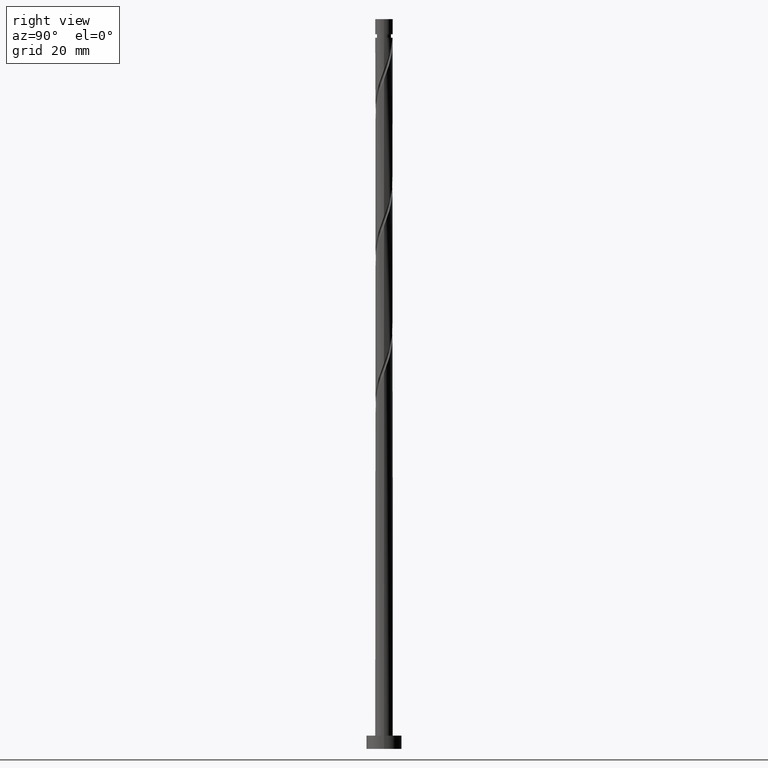
[diagram: clean part render]
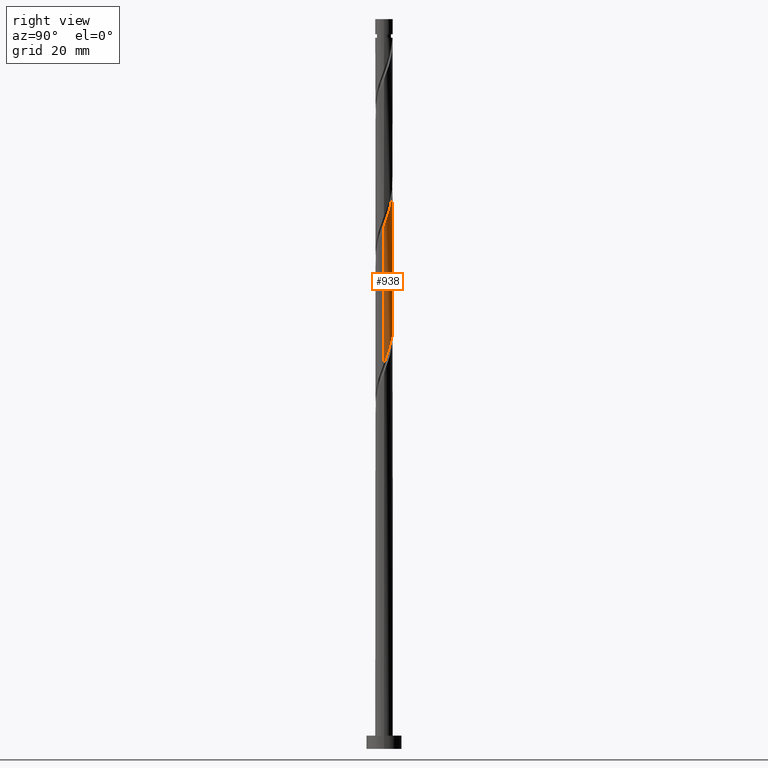
[diagram: same view with one face highlighted and labeled with its STEP entity id]
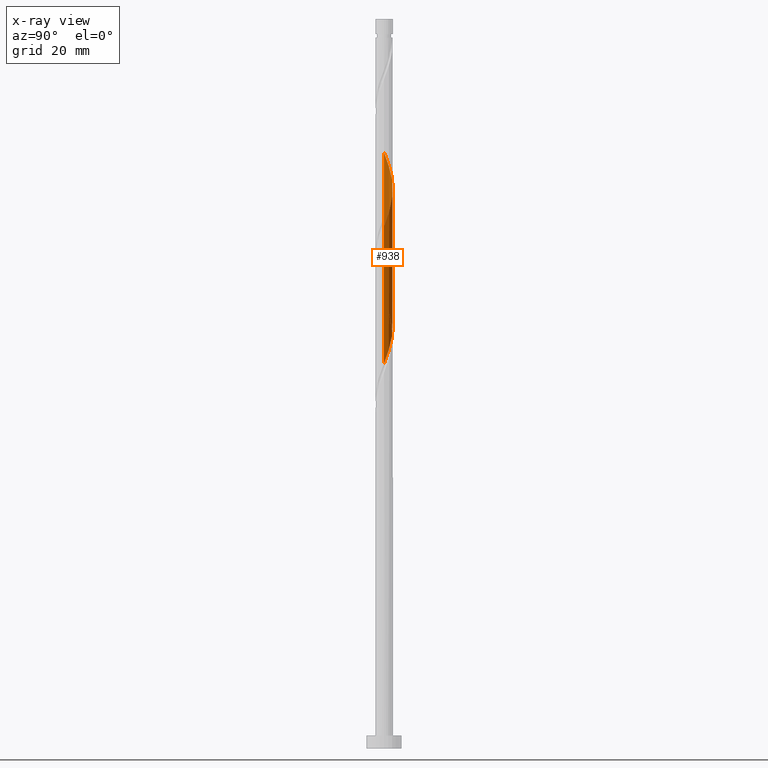
[diagram: x-ray of the same camera — body ghosted, the highlighted face saturated]
A machine part, right view. The second image highlights one B-rep face of the part: STEP entity #938.
The next image is the same camera in x-ray: the body ghosted, the highlighted face saturated — about 0% of this face is hidden behind the body in this view.
In plain terms, the highlighted cylindrical surface (edge-blend (fillet) strip) has radius 2 mm, axis along (-0, -0, -1).
Its self-contained STEP definition (entity closure, byte-faithful):
#5 = DIRECTION ( 'NONE',  ( -0.000000000000000000, -0.000000000000000000, -1.000000000000000000 ) ) ;
#64 = ORIENTED_EDGE ( 'NONE', *, *, #411, .F. ) ;
#76 = VECTOR ( 'NONE', #598, 1000.000000000000000 ) ;
#99 = CARTESIAN_POINT ( 'NONE',  ( -0.6560338701139447615, 1.907602967534735239, 128.9230861811824980 ) ) ;
#105 = CARTESIAN_POINT ( 'NONE',  ( 1.999999999999999556, -2.624389169855325064E-15, 87.62554172528147944 ) ) ;
#116 = CARTESIAN_POINT ( 'NONE',  ( -0.1399560795713503114, 2.012397032465270463, 127.5341972922936549 ) ) ;
#135 = AXIS2_PLACEMENT_3D ( 'NONE', #1377, #1632, #1513 ) ;
#150 = VERTEX_POINT ( 'NONE', #1182 ) ;
#238 = CARTESIAN_POINT ( 'NONE',  ( 1.907602967534735683, 0.6560338701139443174, 120.5897528478492120 ) ) ;
#246 = CARTESIAN_POINT ( 'NONE',  ( 0.1228517034671607472, 1.996223298870952290, 126.8397528478492120 ) ) ;
#286 = CARTESIAN_POINT ( 'NONE',  ( -1.498412303996174977, 1.324673758792281442, 100.4508639589602836 ) ) ;
#312 = CARTESIAN_POINT ( 'NONE',  ( -0.1228517034671585684, 1.996223298870949403, 96.28419729229362645 ) ) ;
#321 = CARTESIAN_POINT ( 'NONE',  ( 1.324673758792282108, 1.498412303996174533, 92.11753062562696925 ) ) ;
#399 = CARTESIAN_POINT ( 'NONE',  ( -0.3979949748426481193, 1.960000000000003073, 128.2286417367380977 ) ) ;
#411 = EDGE_CURVE ( 'NONE', #951, #476, #1138, .T. ) ;
#433 = ORIENTED_EDGE ( 'NONE', *, *, #1639, .T. ) ;
#460 = CARTESIAN_POINT ( 'NONE',  ( 0.3979949748426486189, 1.959999999999999520, 94.89530840340474072 ) ) ;
#474 = CARTESIAN_POINT ( 'NONE',  ( -2.000000000000000000, 0.000000000000000000, 165.8000000000000114 ) ) ;
#476 = VERTEX_POINT ( 'NONE', #1129 ) ;
#505 = CARTESIAN_POINT ( 'NONE',  ( -0.8917189533347235075, 1.790205940182200361, 129.6175306256269835 ) ) ;
#516 = CARTESIAN_POINT ( 'NONE',  ( -2.000000000000003109, 0.06148390331535001641, 135.3352447268331957 ) ) ;
#525 = CARTESIAN_POINT ( 'NONE',  ( -1.980049565276635226, 0.3856594865056707233, 134.4786417367380693 ) ) ;
#566 = CARTESIAN_POINT ( 'NONE',  ( -1.672808912829663486, 1.127404036555500921, 101.1453084034047549 ) ) ;
#587 =( BOUNDED_CURVE ( )  B_SPLINE_CURVE ( 2, ( #1663, #977, #1652, #1516, #985, #566, #286, #1525, #601, #853, #959, #722, #312, #1509, #460, #1096, #1390, #1532, #321, #860, #1397, #728, #827, #1498, #1365, #1037, #105 ),
 .UNSPECIFIED., .F., .T. ) 
 B_SPLINE_CURVE_WITH_KNOTS ( ( 3, 2, 2, 2, 2, 2, 2, 2, 2, 2, 2, 2, 2, 3 ),
 ( 0.6795317669814463502, 0.6875000000000000000, 0.6979166666666666297, 0.7083333333333333703, 0.7187500000000000000, 0.7291666666666666297, 0.7395833333333333703, 0.7500000000000000000, 0.7604166666666666297, 0.7708333333333333703, 0.7812500000000000000, 0.7916666666666666297, 0.8020833333333333703, 0.8045317669814464612 ),
 .UNSPECIFIED. ) 
 CURVE ( )  GEOMETRIC_REPRESENTATION_ITEM ( )  RATIONAL_B_SPLINE_CURVE ( ( 0.9062941362546445001, 0.9031415850403488044, 0.9090909090909243817, 0.9013135103398426384, 0.9090909090909243817, 0.9013135103398426384, 0.9090909090909243817, 0.9013135103398426384, 0.9090909090909243817, 0.9013135103398426384, 0.9090909090909243817, 0.9013135103398426384, 0.9090909090909243817, 0.9013135103398426384, 0.9090909090909243817, 0.9013135103398426384, 0.9090909090909243817, 0.9013135103398426384, 0.9090909090909243817, 0.9013135103398426384, 0.9090909090909243817, 0.9013135103398426384, 0.9090909090909243817, 0.9013135103398426384, 0.9090909090909243817, 0.9072628343904179937, 0.9062941362546445001 ) ) 
 REPRESENTATION_ITEM ( '' )  );
#588 = VECTOR ( 'NONE', #5, 1000.000000000000000 ) ;
#598 = DIRECTION ( 'NONE',  ( -0.000000000000000000, -0.000000000000000000, -1.000000000000000000 ) ) ;
#601 = CARTESIAN_POINT ( 'NONE',  ( -1.104504345536226451, 1.667354236715038684, 99.06197507007139791 ) ) ;
#645 = CARTESIAN_POINT ( 'NONE',  ( -1.127404036555502254, 1.672808912829665706, 130.3119750700714121 ) ) ;
#653 = CARTESIAN_POINT ( 'NONE',  ( -1.324673758792283662, 1.498412303996178307, 131.0064195145158408 ) ) ;
#663 = CARTESIAN_POINT ( 'NONE',  ( -1.521943481029064849, 1.324015695162690687, 131.7008639589602979 ) ) ;
#679 = LINE ( 'NONE', #1204, #588 ) ;
#718 = CARTESIAN_POINT ( 'NONE',  ( -2.000000000000003109, -3.259925008709154373E-15, 135.4984084148613590 ) ) ;
#722 = CARTESIAN_POINT ( 'NONE',  ( -0.3856594865056697241, 1.980049565276632340, 96.97864173673808352 ) ) ;
#728 = CARTESIAN_POINT ( 'NONE',  ( 1.812764992401016295, 0.8849929959097645460, 90.03419729229361224 ) ) ;
#778 = CARTESIAN_POINT ( 'NONE',  ( -1.667354236715041349, 1.104504345536228671, 132.3953084034047549 ) ) ;
#817 = ORIENTED_EDGE ( 'NONE', *, *, #1140, .F. ) ;
#827 = CARTESIAN_POINT ( 'NONE',  ( 1.896407278838823540, 0.6353262412077164134, 89.33975284784918358 ) ) ;
#853 = CARTESIAN_POINT ( 'NONE',  ( -0.8849929959097657672, 1.812764992401015851, 98.36753062562695504 ) ) ;
#860 = CARTESIAN_POINT ( 'NONE',  ( 1.521943481029063072, 1.324015695162687356, 91.42308618118255481 ) ) ;
#913 = CARTESIAN_POINT ( 'NONE',  ( 1.960000000000003073, 0.3979949748426481748, 119.8953084034047407 ) ) ;
#922 = CARTESIAN_POINT ( 'NONE',  ( 2.000000000000000888, 0.2010075630518489143, 119.3651681173839734 ) ) ;
#938 = ADVANCED_FACE ( 'NONE', ( #1625 ), #1242, .T. ) ;
#951 = VERTEX_POINT ( 'NONE', #718 ) ;
#959 = CARTESIAN_POINT ( 'NONE',  ( -0.6353262412077175236, 1.896407278838823096, 97.67308618118252639 ) ) ;
#977 = CARTESIAN_POINT ( 'NONE',  ( -1.999999999999999556, 0.2010075630518438905, 103.7587820227588793 ) ) ;
#985 = CARTESIAN_POINT ( 'NONE',  ( -1.790205940182196809, 0.8917189533347228414, 101.8397528478491552 ) ) ;
#1037 = CARTESIAN_POINT ( 'NONE',  ( 1.999999999999999556, 0.06148390331534209219, 87.78870541330961430 ) ) ;
#1047 = CARTESIAN_POINT ( 'NONE',  ( -2.000000000000003109, -3.259925008709154373E-15, 135.4984084148613590 ) ) ;
#1096 = CARTESIAN_POINT ( 'NONE',  ( 0.6560338701139459827, 1.907602967534731464, 94.20086395896032627 ) ) ;
#1108 = EDGE_CURVE ( 'NONE', #476, #1271, #587, .T. ) ;
#1122 =( BOUNDED_CURVE ( )  B_SPLINE_CURVE ( 2, ( #1727, #922, #913, #238, #1461, #1597, #1718, #1187, #1168, #1311, #1329, #1579, #246, #116, #399, #99, #505, #645, #653, #663, #778, #1197, #1176, #525, #1442, #516, #1047 ),
 .UNSPECIFIED., .F., .T. ) 
 B_SPLINE_CURVE_WITH_KNOTS ( ( 3, 2, 2, 2, 2, 2, 2, 2, 2, 2, 2, 2, 2, 3 ),
 ( 0.4295317669814466277, 0.4375000000000000000, 0.4479166666666666297, 0.4583333333333333703, 0.4687500000000000000, 0.4791666666666666297, 0.4895833333333333703, 0.5000000000000000000, 0.5104166666666667407, 0.5208333333333332593, 0.5312500000000000000, 0.5416666666666667407, 0.5520833333333332593, 0.5545317669814461281 ),
 .UNSPECIFIED. ) 
 CURVE ( )  GEOMETRIC_REPRESENTATION_ITEM ( )  RATIONAL_B_SPLINE_CURVE ( ( 0.9062941362546510504, 0.9031415850403556878, 0.9090909090909310430, 0.9013135103398492998, 0.9090909090909310430, 0.9013135103398492998, 0.9090909090909310430, 0.9013135103398492998, 0.9090909090909310430, 0.9013135103398492998, 0.9090909090909310430, 0.9013135103398492998, 0.9090909090909310430, 0.9013135103398492998, 0.9090909090909310430, 0.9013135103398492998, 0.9090909090909310430, 0.9013135103398492998, 0.9090909090909310430, 0.9013135103398492998, 0.9090909090909310430, 0.9013135103398492998, 0.9090909090909310430, 0.9013135103398492998, 0.9090909090909310430, 0.9072628343904247661, 0.9062941362546513835 ) ) 
 REPRESENTATION_ITEM ( '' )  );
#1127 = CARTESIAN_POINT ( 'NONE',  ( 1.999999999999999556, -2.624389169855325064E-15, 87.62554172528147944 ) ) ;
#1129 = CARTESIAN_POINT ( 'NONE',  ( -1.999999999999999556, 2.138391175437672464E-15, 104.2922083919481508 ) ) ;
#1138 = LINE ( 'NONE', #474, #76 ) ;
#1140 = EDGE_CURVE ( 'NONE', #150, #951, #1122, .T. ) ;
#1168 = CARTESIAN_POINT ( 'NONE',  ( 1.104504345536229337, 1.667354236715040905, 124.0619750700713979 ) ) ;
#1176 = CARTESIAN_POINT ( 'NONE',  ( -1.896407278838826205, 0.6353262412077193000, 133.7841972922936122 ) ) ;
#1182 = CARTESIAN_POINT ( 'NONE',  ( 2.000000000000002665, -8.972270666171985530E-17, 118.8317417481947018 ) ) ;
#1187 = CARTESIAN_POINT ( 'NONE',  ( 1.324015695162691797, 1.521943481029063294, 123.3675306256269550 ) ) ;
#1197 = CARTESIAN_POINT ( 'NONE',  ( -1.812764992401018072, 0.8849929959097678767, 133.0897528478491836 ) ) ;
#1204 = CARTESIAN_POINT ( 'NONE',  ( 2.000000000000000000, 2.449293598294706414E-16, 165.8000000000000114 ) ) ;
#1242 = CYLINDRICAL_SURFACE ( 'NONE', #135, 2.000000000000000000 ) ;
#1271 = VERTEX_POINT ( 'NONE', #1127 ) ;
#1311 = CARTESIAN_POINT ( 'NONE',  ( 0.8849929959097684318, 1.812764992401017849, 124.7564195145158550 ) ) ;
#1329 = CARTESIAN_POINT ( 'NONE',  ( 0.6353262412077200771, 1.896407278838825983, 125.4508639589602979 ) ) ;
#1365 = CARTESIAN_POINT ( 'NONE',  ( 1.996223298870949403, 0.1228517034671576524, 87.95086395896029785 ) ) ;
#1377 = CARTESIAN_POINT ( 'NONE',  ( 0.000000000000000000, 0.000000000000000000, 165.8000000000000114 ) ) ;
#1390 = CARTESIAN_POINT ( 'NONE',  ( 0.8917189533347238406, 1.790205940182196587, 93.50641951451584077 ) ) ;
#1397 = CARTESIAN_POINT ( 'NONE',  ( 1.667354236715038684, 1.104504345536226229, 90.72864173673808352 ) ) ;
#1442 = CARTESIAN_POINT ( 'NONE',  ( -1.996223298870952290, 0.1228517034671595259, 135.1730861811824980 ) ) ;
#1461 = CARTESIAN_POINT ( 'NONE',  ( 1.790205940182200806, 0.8917189533347229524, 121.2841972922936122 ) ) ;
#1498 = CARTESIAN_POINT ( 'NONE',  ( 1.980049565276632340, 0.3856594865056684474, 88.64530840340472650 ) ) ;
#1509 = CARTESIAN_POINT ( 'NONE',  ( 0.1399560795713525041, 2.012397032465266911, 95.58975284784919779 ) ) ;
#1513 = DIRECTION ( 'NONE',  ( -1.000000000000000000, 0.000000000000000000, 0.000000000000000000 ) ) ;
#1516 = CARTESIAN_POINT ( 'NONE',  ( -1.907602967534731686, 0.6560338701139444284, 102.5341972922936549 ) ) ;
#1525 = CARTESIAN_POINT ( 'NONE',  ( -1.324015695162688022, 1.521943481029062628, 99.75641951451586920 ) ) ;
#1532 = CARTESIAN_POINT ( 'NONE',  ( 1.127404036555502476, 1.672808912829662376, 92.81197507007144054 ) ) ;
#1579 = CARTESIAN_POINT ( 'NONE',  ( 0.3856594865056718890, 1.980049565276634782, 126.1453084034047691 ) ) ;
#1597 = CARTESIAN_POINT ( 'NONE',  ( 1.672808912829666372, 1.127404036555501587, 121.9786417367380977 ) ) ;
#1613 = ORIENTED_EDGE ( 'NONE', *, *, #1108, .F. ) ;
#1625 = FACE_OUTER_BOUND ( 'NONE', #1629, .T. ) ;
#1629 = EDGE_LOOP ( 'NONE', ( #817, #433, #1613, #64 ) ) ;
#1632 = DIRECTION ( 'NONE',  ( -0.000000000000000000, -0.000000000000000000, -1.000000000000000000 ) ) ;
#1639 = EDGE_CURVE ( 'NONE', #150, #1271, #679, .T. ) ;
#1652 = CARTESIAN_POINT ( 'NONE',  ( -1.959999999999999520, 0.3979949748426483969, 103.2286417367380409 ) ) ;
#1663 = CARTESIAN_POINT ( 'NONE',  ( -1.999999999999999556, 2.138391175437672464E-15, 104.2922083919481508 ) ) ;
#1718 = CARTESIAN_POINT ( 'NONE',  ( 1.498412303996179196, 1.324673758792282108, 122.6730861811825264 ) ) ;
#1727 = CARTESIAN_POINT ( 'NONE',  ( 2.000000000000002665, -8.972270666171985530E-17, 118.8317417481946876 ) ) ;